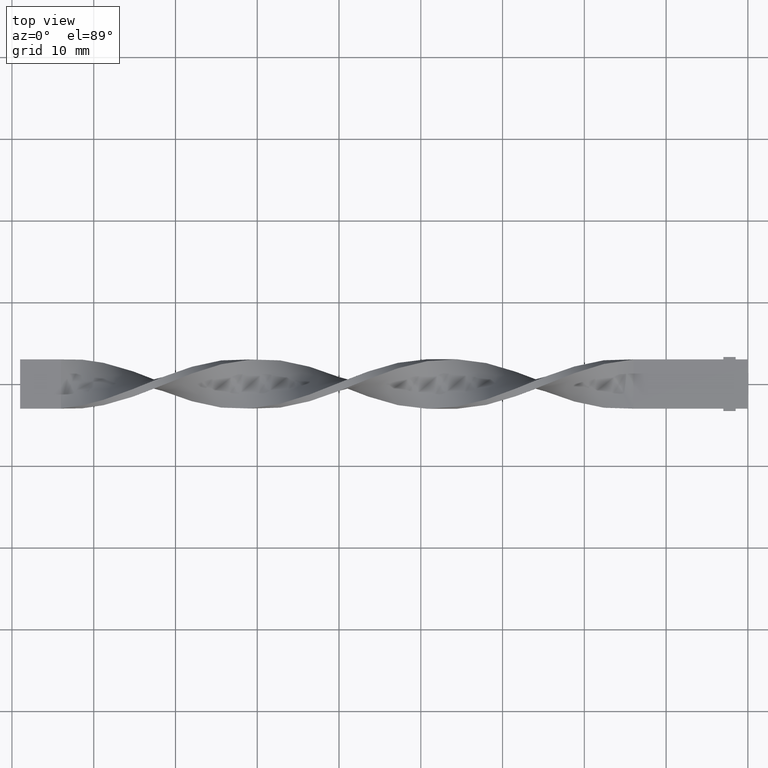
[diagram: clean part render]
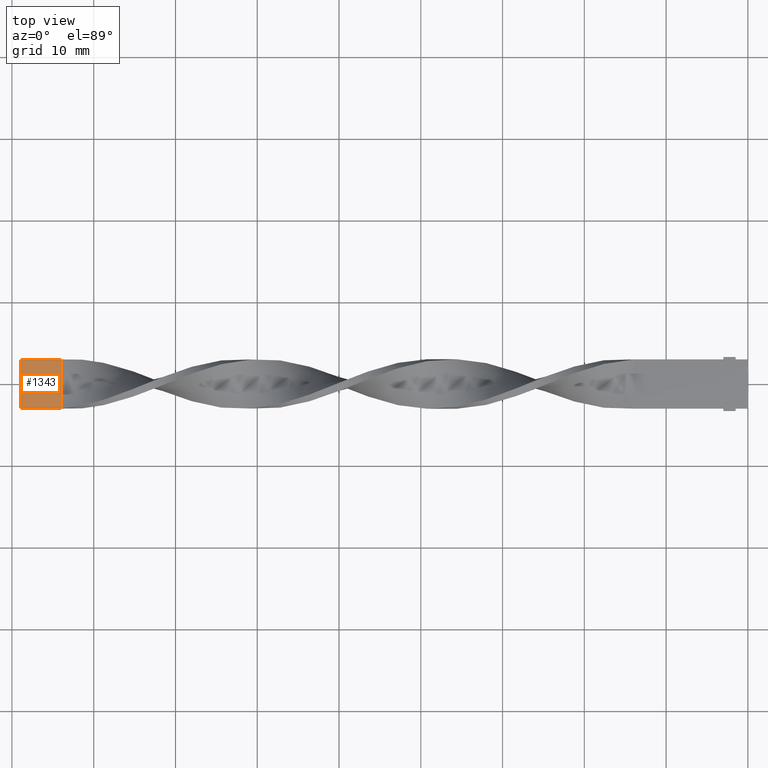
[diagram: same view with one face highlighted and labeled with its STEP entity id]
A machine part, top view. The second image highlights one B-rep face of the part: STEP entity #1343.
In plain terms, the highlighted planar face has unit normal (0, -0, -1).
Its self-contained STEP definition (entity closure, byte-faithful):
#36 = CARTESIAN_POINT ( 'NONE',  ( -84.00000000000000000, -2.999999999999999112, 0.5000000000000003331 ) ) ;
#184 = DIRECTION ( 'NONE',  ( 1.000000000000000000, -0.000000000000000000, -0.000000000000000000 ) ) ;
#208 = AXIS2_PLACEMENT_3D ( 'NONE', #1154, #1532, #660 ) ;
#248 = DIRECTION ( 'NONE',  ( 1.000000000000000000, -0.000000000000000000, -0.000000000000000000 ) ) ;
#280 = CARTESIAN_POINT ( 'NONE',  ( -84.00000000000000000, 1.000000000000000000, 0.4999999999999998890 ) ) ;
#349 = VERTEX_POINT ( 'NONE', #812 ) ;
#396 = CARTESIAN_POINT ( 'NONE',  ( -84.00000000000000000, -1.000000000000000000, 0.5000000000000001110 ) ) ;
#407 = LINE ( 'NONE', #790, #1568 ) ;
#525 = CARTESIAN_POINT ( 'NONE',  ( -84.00000000000000000, 2.999999999999999112, 0.4999999999999996669 ) ) ;
#535 = PLANE ( 'NONE',  #208 ) ;
#622 = LINE ( 'NONE', #983, #1134 ) ;
#660 = DIRECTION ( 'NONE',  ( 0.000000000000000000, 1.000000000000000000, -1.084202172485504681E-16 ) ) ;
#757 = EDGE_CURVE ( 'NONE', #1516, #852, #407, .T. ) ;
#790 = CARTESIAN_POINT ( 'NONE',  ( -89.00000000000001421, 2.999999999999999112, 0.4999999999999996669 ) ) ;
#812 = CARTESIAN_POINT ( 'NONE',  ( -89.00000000000001421, -2.999999999999999112, 0.5000000000000003331 ) ) ;
#852 = VERTEX_POINT ( 'NONE', #977 ) ;
#859 = ORIENTED_EDGE ( 'NONE', *, *, #757, .F. ) ;
#946 = EDGE_LOOP ( 'NONE', ( #1158, #859, #1151, #1310 ) ) ;
#977 = CARTESIAN_POINT ( 'NONE',  ( -84.00000000000000000, 2.999999999999999112, 0.4999999999999996669 ) ) ;
#983 = CARTESIAN_POINT ( 'NONE',  ( -89.00000000000001421, -2.999999999999999112, 0.5000000000000003331 ) ) ;
#1033 = FACE_OUTER_BOUND ( 'NONE', #946, .T. ) ;
#1057 = DIRECTION ( 'NONE',  ( 0.000000000000000000, 1.000000000000000000, -1.084202172485504681E-16 ) ) ;
#1134 = VECTOR ( 'NONE', #248, 1000.000000000000000 ) ;
#1146 = CARTESIAN_POINT ( 'NONE',  ( -89.00000000000001421, -2.999999999999999112, 0.5000000000000003331 ) ) ;
#1151 = ORIENTED_EDGE ( 'NONE', *, *, #1443, .F. ) ;
#1154 = CARTESIAN_POINT ( 'NONE',  ( -89.00000000000001421, -2.999999999999999112, 0.5000000000000003331 ) ) ;
#1158 = ORIENTED_EDGE ( 'NONE', *, *, #1324, .T. ) ;
#1251 = B_SPLINE_CURVE_WITH_KNOTS ( 'NONE', 3,
 ( #1406, #396, #280, #525 ),
 .UNSPECIFIED., .F., .F.,
 ( 4, 4 ),
 ( 0.000000000000000000, 1.000000000000000000 ),
 .UNSPECIFIED. ) ;
#1305 = LINE ( 'NONE', #1146, #1477 ) ;
#1310 = ORIENTED_EDGE ( 'NONE', *, *, #1492, .T. ) ;
#1324 = EDGE_CURVE ( 'NONE', #1336, #852, #1251, .T. ) ;
#1336 = VERTEX_POINT ( 'NONE', #36 ) ;
#1343 = ADVANCED_FACE ( 'NONE', ( #1033 ), #535, .F. ) ;
#1406 = CARTESIAN_POINT ( 'NONE',  ( -84.00000000000000000, -2.999999999999999112, 0.5000000000000003331 ) ) ;
#1443 = EDGE_CURVE ( 'NONE', #349, #1516, #1305, .T. ) ;
#1477 = VECTOR ( 'NONE', #1057, 1000.000000000000000 ) ;
#1487 = CARTESIAN_POINT ( 'NONE',  ( -89.00000000000001421, 2.999999999999999112, 0.4999999999999996669 ) ) ;
#1492 = EDGE_CURVE ( 'NONE', #349, #1336, #622, .T. ) ;
#1516 = VERTEX_POINT ( 'NONE', #1487 ) ;
#1532 = DIRECTION ( 'NONE',  ( 0.000000000000000000, -1.084202172485504681E-16, -1.000000000000000000 ) ) ;
#1568 = VECTOR ( 'NONE', #184, 1000.000000000000000 ) ;